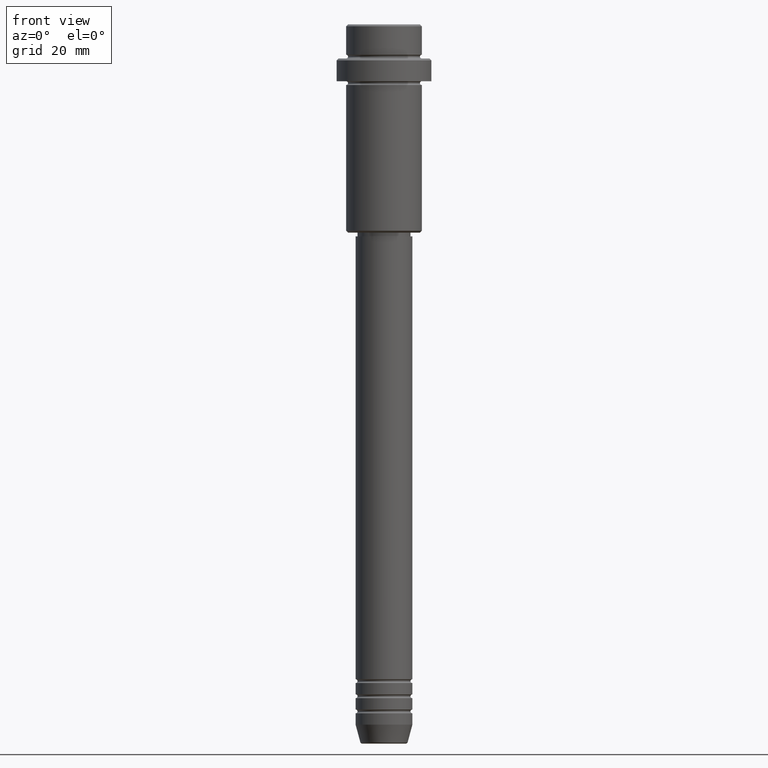
[diagram: clean part render]
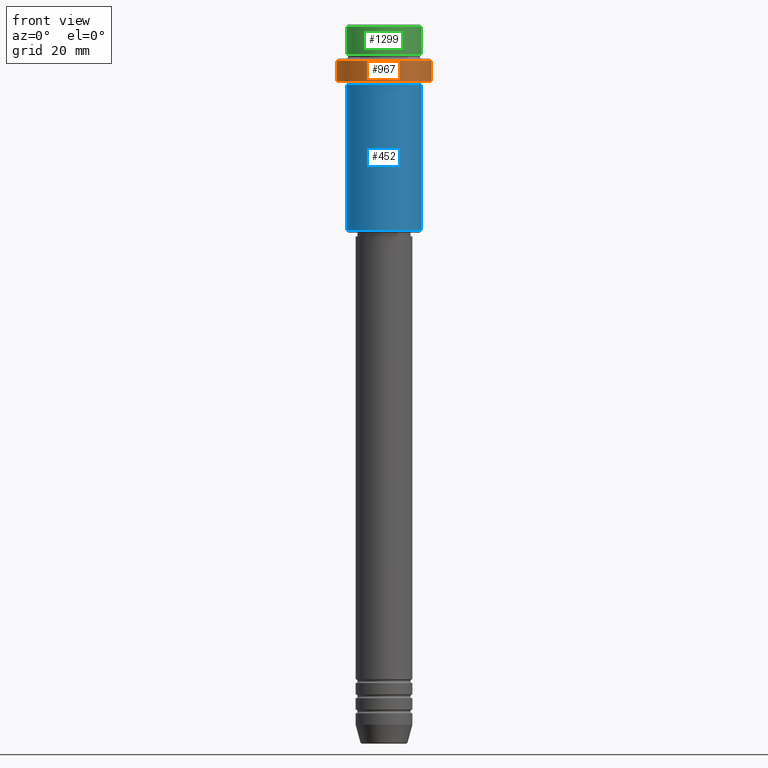
[diagram: same view with three faces highlighted in distinct colors, each labeled with its STEP entity id]
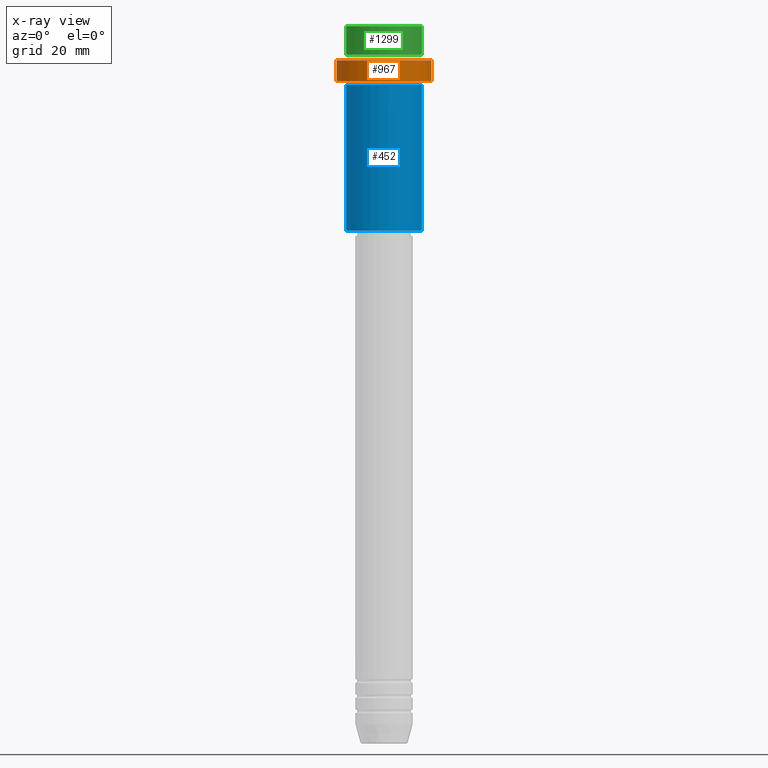
[diagram: x-ray of the same camera — body ghosted, the three highlighted faces saturated]
A machine part, front view with three faces highlighted in distinct colors.
The next image is the same camera in x-ray (body ghosted, the three faces saturated) — at least one of them is partly hidden behind the body in this view.
Their STEP definitions:

[orange] entity #967 — the highlighted cylindrical surface (partial cylindrical patch) has radius 12.5 mm, axis along (-0, -0, 1).
#1 = CARTESIAN_POINT ( 'NONE',  ( 0.000000000000000000, 0.000000000000000000, 0.000000000000000000 ) ) ;
#20 = DIRECTION ( 'NONE',  ( 1.000000000000000000, 0.000000000000000000, 0.000000000000000000 ) ) ;
#40 = CARTESIAN_POINT ( 'NONE',  ( 12.50000000000000000, 0.000000000000000000, -9.500000000000007105 ) ) ;
#51 = DIRECTION ( 'NONE',  ( -0.000000000000000000, -0.000000000000000000, 1.000000000000000000 ) ) ;
#159 = CARTESIAN_POINT ( 'NONE',  ( -12.50000000000000000, 1.530808498934191521E-15, 0.000000000000000000 ) ) ;
#298 = ORIENTED_EDGE ( 'NONE', *, *, #506, .F. ) ;
#304 = LINE ( 'NONE', #729, #887 ) ;
#312 = CARTESIAN_POINT ( 'NONE',  ( 12.50000000000000000, 0.000000000000000000, -15.00000000000000178 ) ) ;
#326 = AXIS2_PLACEMENT_3D ( 'NONE', #1, #1316, #1224 ) ;
#350 = DIRECTION ( 'NONE',  ( -0.000000000000000000, -0.000000000000000000, 1.000000000000000000 ) ) ;
#366 = FACE_OUTER_BOUND ( 'NONE', #964, .T. ) ;
#392 = DIRECTION ( 'NONE',  ( 1.000000000000000000, 0.000000000000000000, 0.000000000000000000 ) ) ;
#395 = ORIENTED_EDGE ( 'NONE', *, *, #558, .T. ) ;
#462 = EDGE_CURVE ( 'NONE', #1272, #811, #1344, .T. ) ;
#505 = ORIENTED_EDGE ( 'NONE', *, *, #462, .T. ) ;
#506 = EDGE_CURVE ( 'NONE', #1272, #567, #1019, .T. ) ;
#529 = CARTESIAN_POINT ( 'NONE',  ( -12.50000000000000000, 1.530808498934191521E-15, -9.500000000000007105 ) ) ;
#558 = EDGE_CURVE ( 'NONE', #999, #567, #620, .T. ) ;
#567 = VERTEX_POINT ( 'NONE', #529 ) ;
#620 = CIRCLE ( 'NONE', #936, 12.50000000000000000 ) ;
#661 = VECTOR ( 'NONE', #51, 1000.000000000000000 ) ;
#672 = EDGE_CURVE ( 'NONE', #811, #999, #304, .T. ) ;
#705 = AXIS2_PLACEMENT_3D ( 'NONE', #957, #350, #20 ) ;
#729 = CARTESIAN_POINT ( 'NONE',  ( 12.50000000000000000, 0.000000000000000000, 0.000000000000000000 ) ) ;
#811 = VERTEX_POINT ( 'NONE', #312 ) ;
#887 = VECTOR ( 'NONE', #914, 1000.000000000000000 ) ;
#914 = DIRECTION ( 'NONE',  ( -0.000000000000000000, -0.000000000000000000, 1.000000000000000000 ) ) ;
#936 = AXIS2_PLACEMENT_3D ( 'NONE', #1176, #1119, #392 ) ;
#957 = CARTESIAN_POINT ( 'NONE',  ( 0.000000000000000000, 0.000000000000000000, -15.00000000000000178 ) ) ;
#964 = EDGE_LOOP ( 'NONE', ( #298, #505, #1156, #395 ) ) ;
#967 = ADVANCED_FACE ( 'NONE', ( #366 ), #989, .T. ) ;
#989 = CYLINDRICAL_SURFACE ( 'NONE', #326, 12.50000000000000000 ) ;
#999 = VERTEX_POINT ( 'NONE', #40 ) ;
#1008 = CARTESIAN_POINT ( 'NONE',  ( -12.50000000000000000, 1.530808498934191521E-15, -15.00000000000000178 ) ) ;
#1019 = LINE ( 'NONE', #159, #661 ) ;
#1119 = DIRECTION ( 'NONE',  ( 0.000000000000000000, 0.000000000000000000, -1.000000000000000000 ) ) ;
#1156 = ORIENTED_EDGE ( 'NONE', *, *, #672, .T. ) ;
#1176 = CARTESIAN_POINT ( 'NONE',  ( 0.000000000000000000, 0.000000000000000000, -9.500000000000007105 ) ) ;
#1224 = DIRECTION ( 'NONE',  ( 1.000000000000000000, 0.000000000000000000, 0.000000000000000000 ) ) ;
#1272 = VERTEX_POINT ( 'NONE', #1008 ) ;
#1316 = DIRECTION ( 'NONE',  ( -0.000000000000000000, -0.000000000000000000, 1.000000000000000000 ) ) ;
#1344 = CIRCLE ( 'NONE', #705, 12.50000000000000000 ) ;

[blue] entity #452 — the highlighted cylindrical surface (partial cylindrical patch) has radius 10 mm, axis along (-0, -0, 1).
#9 = VECTOR ( 'NONE', #1058, 1000.000000000000000 ) ;
#17 = ORIENTED_EDGE ( 'NONE', *, *, #1382, .T. ) ;
#50 = DIRECTION ( 'NONE',  ( -0.000000000000000000, -0.000000000000000000, 1.000000000000000000 ) ) ;
#87 = CARTESIAN_POINT ( 'NONE',  ( 0.000000000000000000, 0.000000000000000000, -16.00000000000000000 ) ) ;
#169 = FACE_OUTER_BOUND ( 'NONE', #1105, .T. ) ;
#205 = VECTOR ( 'NONE', #50, 1000.000000000000000 ) ;
#267 = EDGE_CURVE ( 'NONE', #821, #1116, #1375, .T. ) ;
#296 = DIRECTION ( 'NONE',  ( 1.000000000000000000, 0.000000000000000000, 0.000000000000000000 ) ) ;
#307 = AXIS2_PLACEMENT_3D ( 'NONE', #1330, #1014, #481 ) ;
#413 = CARTESIAN_POINT ( 'NONE',  ( 10.00000000000000000, 0.000000000000000000, 0.000000000000000000 ) ) ;
#452 = ADVANCED_FACE ( 'NONE', ( #169 ), #1260, .T. ) ;
#481 = DIRECTION ( 'NONE',  ( -1.000000000000000000, 0.000000000000000000, 0.000000000000000000 ) ) ;
#540 = DIRECTION ( 'NONE',  ( -0.000000000000000000, -0.000000000000000000, 1.000000000000000000 ) ) ;
#542 = CARTESIAN_POINT ( 'NONE',  ( -10.00000000000000000, 1.224646799147353256E-15, -16.00000000000000000 ) ) ;
#554 = ORIENTED_EDGE ( 'NONE', *, *, #1215, .F. ) ;
#557 = CIRCLE ( 'NONE', #1069, 10.00000000000000000 ) ;
#613 = CARTESIAN_POINT ( 'NONE',  ( 0.000000000000000000, 0.000000000000000000, 0.000000000000000000 ) ) ;
#690 = ORIENTED_EDGE ( 'NONE', *, *, #267, .T. ) ;
#700 = VERTEX_POINT ( 'NONE', #542 ) ;
#759 = ORIENTED_EDGE ( 'NONE', *, *, #1102, .F. ) ;
#821 = VERTEX_POINT ( 'NONE', #1063 ) ;
#857 = DIRECTION ( 'NONE',  ( 1.000000000000000000, 0.000000000000000000, 0.000000000000000000 ) ) ;
#905 = DIRECTION ( 'NONE',  ( -0.000000000000000000, -0.000000000000000000, 1.000000000000000000 ) ) ;
#965 = CIRCLE ( 'NONE', #307, 10.00000000000000000 ) ;
#1014 = DIRECTION ( 'NONE',  ( -0.000000000000000000, -0.000000000000000000, 1.000000000000000000 ) ) ;
#1032 = LINE ( 'NONE', #1268, #205 ) ;
#1058 = DIRECTION ( 'NONE',  ( -0.000000000000000000, -0.000000000000000000, 1.000000000000000000 ) ) ;
#1063 = CARTESIAN_POINT ( 'NONE',  ( 10.00000000000000000, 0.000000000000000000, -54.50000000000002842 ) ) ;
#1069 = AXIS2_PLACEMENT_3D ( 'NONE', #87, #540, #857 ) ;
#1102 = EDGE_CURVE ( 'NONE', #1264, #700, #1032, .T. ) ;
#1105 = EDGE_LOOP ( 'NONE', ( #759, #17, #690, #554 ) ) ;
#1116 = VERTEX_POINT ( 'NONE', #1365 ) ;
#1215 = EDGE_CURVE ( 'NONE', #700, #1116, #557, .T. ) ;
#1260 = CYLINDRICAL_SURFACE ( 'NONE', #1404, 10.00000000000000000 ) ;
#1264 = VERTEX_POINT ( 'NONE', #1342 ) ;
#1268 = CARTESIAN_POINT ( 'NONE',  ( -10.00000000000000000, 1.224646799147353256E-15, 0.000000000000000000 ) ) ;
#1330 = CARTESIAN_POINT ( 'NONE',  ( 0.000000000000000000, 0.000000000000000000, -54.50000000000002842 ) ) ;
#1342 = CARTESIAN_POINT ( 'NONE',  ( -10.00000000000000000, 1.224646799147353256E-15, -54.50000000000002842 ) ) ;
#1365 = CARTESIAN_POINT ( 'NONE',  ( 10.00000000000000000, 0.000000000000000000, -16.00000000000000000 ) ) ;
#1375 = LINE ( 'NONE', #413, #9 ) ;
#1382 = EDGE_CURVE ( 'NONE', #1264, #821, #965, .T. ) ;
#1404 = AXIS2_PLACEMENT_3D ( 'NONE', #613, #905, #296 ) ;

[green] entity #1299 — the highlighted cylindrical surface (partial cylindrical patch) has radius 10 mm, axis along (-0, -0, 1).
#94 = EDGE_CURVE ( 'NONE', #948, #1343, #576, .T. ) ;
#115 = LINE ( 'NONE', #766, #978 ) ;
#148 = VERTEX_POINT ( 'NONE', #1083 ) ;
#170 = CARTESIAN_POINT ( 'NONE',  ( 0.000000000000000000, 0.000000000000000000, -7.999999999999998224 ) ) ;
#215 = DIRECTION ( 'NONE',  ( 0.000000000000000000, 0.000000000000000000, -1.000000000000000000 ) ) ;
#229 = DIRECTION ( 'NONE',  ( -0.000000000000000000, -0.000000000000000000, 1.000000000000000000 ) ) ;
#231 = CARTESIAN_POINT ( 'NONE',  ( 0.000000000000000000, 0.000000000000000000, -0.4999999999999970024 ) ) ;
#236 = CARTESIAN_POINT ( 'NONE',  ( 0.000000000000000000, 0.000000000000000000, 0.000000000000000000 ) ) ;
#300 = CARTESIAN_POINT ( 'NONE',  ( 9.999999999999998224, 0.000000000000000000, -7.999999999999998224 ) ) ;
#316 = ORIENTED_EDGE ( 'NONE', *, *, #94, .T. ) ;
#323 = AXIS2_PLACEMENT_3D ( 'NONE', #231, #215, #1399 ) ;
#333 = CARTESIAN_POINT ( 'NONE',  ( 9.999999999999998224, 0.000000000000000000, 0.000000000000000000 ) ) ;
#354 = AXIS2_PLACEMENT_3D ( 'NONE', #170, #1370, #931 ) ;
#363 = DIRECTION ( 'NONE',  ( -0.000000000000000000, -0.000000000000000000, 1.000000000000000000 ) ) ;
#385 = EDGE_LOOP ( 'NONE', ( #934, #595, #608, #316 ) ) ;
#391 = EDGE_CURVE ( 'NONE', #148, #1343, #115, .T. ) ;
#539 = CIRCLE ( 'NONE', #354, 9.999999999999998224 ) ;
#576 = CIRCLE ( 'NONE', #323, 9.999999999999998224 ) ;
#595 = ORIENTED_EDGE ( 'NONE', *, *, #1413, .T. ) ;
#598 = LINE ( 'NONE', #333, #641 ) ;
#608 = ORIENTED_EDGE ( 'NONE', *, *, #691, .T. ) ;
#641 = VECTOR ( 'NONE', #853, 1000.000000000000000 ) ;
#657 = CYLINDRICAL_SURFACE ( 'NONE', #1258, 9.999999999999998224 ) ;
#691 = EDGE_CURVE ( 'NONE', #1072, #948, #598, .T. ) ;
#766 = CARTESIAN_POINT ( 'NONE',  ( -9.999999999999998224, 1.224646799147353059E-15, 0.000000000000000000 ) ) ;
#853 = DIRECTION ( 'NONE',  ( -0.000000000000000000, -0.000000000000000000, 1.000000000000000000 ) ) ;
#882 = FACE_OUTER_BOUND ( 'NONE', #385, .T. ) ;
#910 = CARTESIAN_POINT ( 'NONE',  ( 9.999999999999998224, 0.000000000000000000, -0.4999999999999970024 ) ) ;
#931 = DIRECTION ( 'NONE',  ( 1.000000000000000000, 0.000000000000000000, 0.000000000000000000 ) ) ;
#934 = ORIENTED_EDGE ( 'NONE', *, *, #391, .F. ) ;
#948 = VERTEX_POINT ( 'NONE', #910 ) ;
#978 = VECTOR ( 'NONE', #229, 1000.000000000000000 ) ;
#1072 = VERTEX_POINT ( 'NONE', #300 ) ;
#1083 = CARTESIAN_POINT ( 'NONE',  ( -9.999999999999998224, 1.224646799147353059E-15, -7.999999999999998224 ) ) ;
#1120 = DIRECTION ( 'NONE',  ( 1.000000000000000000, 0.000000000000000000, 0.000000000000000000 ) ) ;
#1258 = AXIS2_PLACEMENT_3D ( 'NONE', #236, #363, #1120 ) ;
#1299 = ADVANCED_FACE ( 'NONE', ( #882 ), #657, .T. ) ;
#1343 = VERTEX_POINT ( 'NONE', #1414 ) ;
#1370 = DIRECTION ( 'NONE',  ( -0.000000000000000000, -0.000000000000000000, 1.000000000000000000 ) ) ;
#1399 = DIRECTION ( 'NONE',  ( 1.000000000000000000, 0.000000000000000000, 0.000000000000000000 ) ) ;
#1413 = EDGE_CURVE ( 'NONE', #148, #1072, #539, .T. ) ;
#1414 = CARTESIAN_POINT ( 'NONE',  ( -9.999999999999998224, 1.224646799147353059E-15, -0.4999999999999970024 ) ) ;